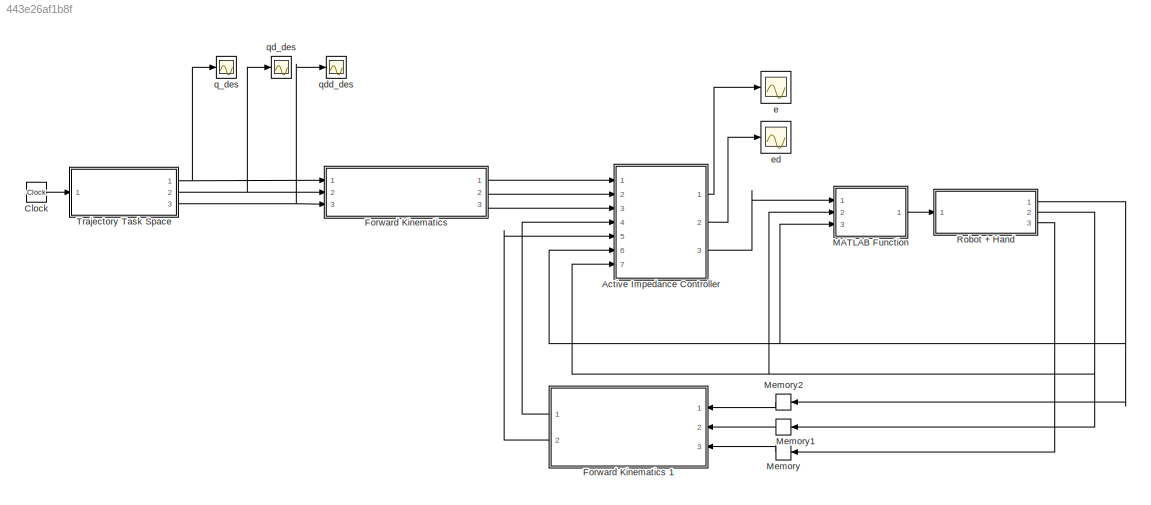
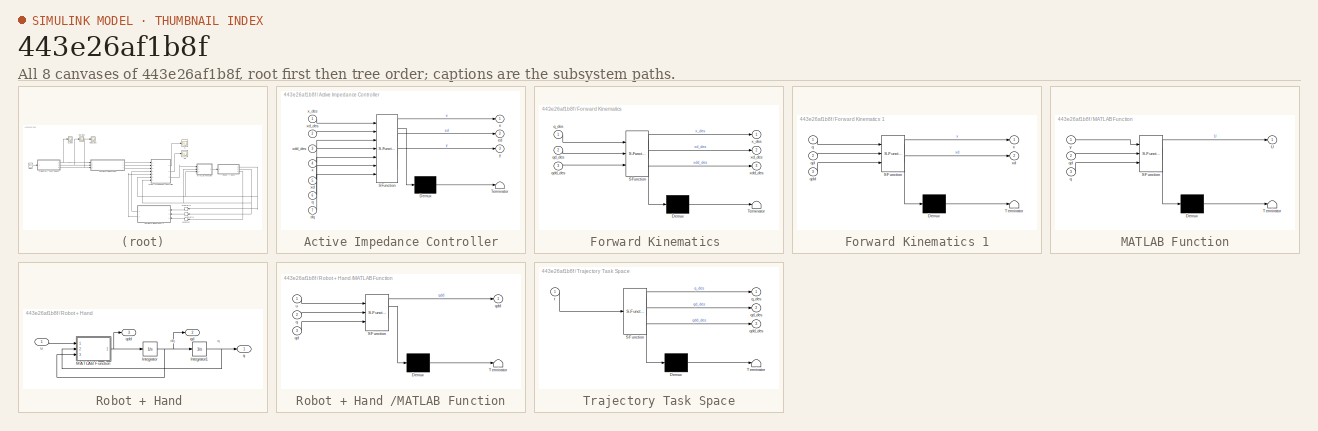
[diagram: thumbnail index - all 8 canvases of the model, root first then tree order]
MODEL slx_443e26af1b8f
KIND model
CONFIG AbsTol = auto
CONFIG EnableMultiTasking = on
CONFIG FixedStep = Ts
CONFIG MaxStep = auto
CONFIG MinStep = auto
CONFIG RelTol = 1e-3
CONFIG SampleTimeConstraint = Unconstrained
CONFIG Solver = FixedStepAuto
CONFIG SolverName = FixedStepAuto
CONFIG StartTime = 0.0
CONFIG StopTime = 10.0
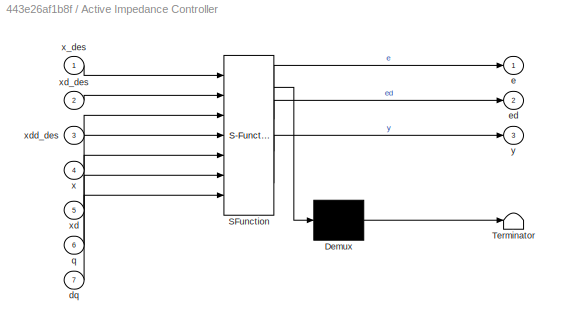
BLOCK [SubSystem] Active Impedance Controller
  ErrorFcn = Stateflow.Translate.translate
  PermitHierarchicalResolution = ExplicitOnly
  Ports = [7, 3]
  RequestExecContextInheritance = off
  SFBlockType = MATLAB Function
  TreatAsAtomicUnit = on
BLOCK [Demux] Active Impedance Controller/ Demux 
  Outputs = 1
  Ports = [1, 1]
BLOCK [S-Function] Active Impedance Controller/ SFunction 
  EnableBusSupport = on
  FunctionName = sf_sfun
  PortCounts = [7 4]
  Ports = [7, 4]
  Tag = Stateflow S-Function ImpedanceControl 1
BLOCK [Terminator] Active Impedance Controller/ Terminator 
BLOCK [Inport] Active Impedance Controller/dq
  IconDisplay = Port number
  Port = 7
BLOCK [Outport] Active Impedance Controller/e
  IconDisplay = Port number
BLOCK [Outport] Active Impedance Controller/ed
  IconDisplay = Port number
  Port = 2
BLOCK [Inport] Active Impedance Controller/q
  IconDisplay = Port number
  Port = 6
BLOCK [Inport] Active Impedance Controller/x
  IconDisplay = Port number
  Port = 4
BLOCK [Inport] Active Impedance Controller/x_des
  IconDisplay = Port number
BLOCK [Inport] Active Impedance Controller/xd
  IconDisplay = Port number
  Port = 5
BLOCK [Inport] Active Impedance Controller/xd_des
  IconDisplay = Port number
  Port = 2
BLOCK [Inport] Active Impedance Controller/xdd_des
  IconDisplay = Port number
  Port = 3
BLOCK [Outport] Active Impedance Controller/y
  IconDisplay = Port number
  Port = 3
BLOCK [Clock] Clock
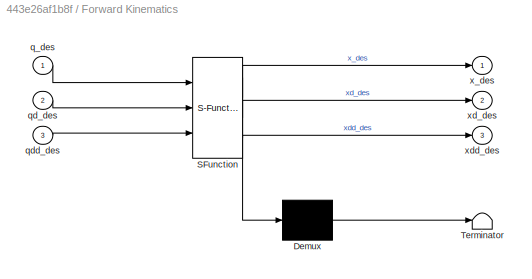
BLOCK [SubSystem] Forward Kinematics 
  ErrorFcn = Stateflow.Translate.translate
  PermitHierarchicalResolution = ExplicitOnly
  Ports = [3, 3]
  RequestExecContextInheritance = off
  SFBlockType = MATLAB Function
  TreatAsAtomicUnit = on
BLOCK [Demux] Forward Kinematics / Demux 
  Outputs = 1
  Ports = [1, 1]
BLOCK [S-Function] Forward Kinematics / SFunction 
  EnableBusSupport = on
  FunctionName = sf_sfun
  PortCounts = [3 4]
  Ports = [3, 4]
  Tag = Stateflow S-Function ImpedanceControl 2
BLOCK [Terminator] Forward Kinematics / Terminator 
BLOCK [Inport] Forward Kinematics /q_des
  IconDisplay = Port number
BLOCK [Inport] Forward Kinematics /qd_des
  IconDisplay = Port number
  Port = 2
BLOCK [Inport] Forward Kinematics /qdd_des
  IconDisplay = Port number
  Port = 3
BLOCK [Outport] Forward Kinematics /x_des
  IconDisplay = Port number
BLOCK [Outport] Forward Kinematics /xd_des
  IconDisplay = Port number
  Port = 2
BLOCK [Outport] Forward Kinematics /xdd_des
  IconDisplay = Port number
  Port = 3
BLOCK [SubSystem] Forward Kinematics 1
  ErrorFcn = Stateflow.Translate.translate
  PermitHierarchicalResolution = ExplicitOnly
  Ports = [3, 2]
  RequestExecContextInheritance = off
  SFBlockType = MATLAB Function
  TreatAsAtomicUnit = on
BLOCK [Demux] Forward Kinematics 1/ Demux 
  Outputs = 1
  Ports = [1, 1]
BLOCK [S-Function] Forward Kinematics 1/ SFunction 
  EnableBusSupport = on
  FunctionName = sf_sfun
  PortCounts = [3 3]
  Ports = [3, 3]
  Tag = Stateflow S-Function ImpedanceControl 6
BLOCK [Terminator] Forward Kinematics 1/ Terminator 
BLOCK [Inport] Forward Kinematics 1/q
  IconDisplay = Port number
BLOCK [Inport] Forward Kinematics 1/qd
  IconDisplay = Port number
  Port = 2
BLOCK [Inport] Forward Kinematics 1/qdd
  IconDisplay = Port number
  Port = 3
BLOCK [Outport] Forward Kinematics 1/x
  IconDisplay = Port number
BLOCK [Outport] Forward Kinematics 1/xd
  IconDisplay = Port number
  Port = 2
BLOCK [SubSystem] MATLAB Function
  ErrorFcn = Stateflow.Translate.translate
  PermitHierarchicalResolution = ExplicitOnly
  Ports = [3, 1]
  RequestExecContextInheritance = off
  SFBlockType = MATLAB Function
  TreatAsAtomicUnit = on
BLOCK [Demux] MATLAB Function/ Demux 
  Outputs = 1
  Ports = [1, 1]
BLOCK [S-Function] MATLAB Function/ SFunction 
  EnableBusSupport = on
  FunctionName = sf_sfun
  PortCounts = [3 2]
  Ports = [3, 2]
  Tag = Stateflow S-Function ImpedanceControl 7
BLOCK [Terminator] MATLAB Function/ Terminator 
BLOCK [Outport] MATLAB Function/U
  IconDisplay = Port number
BLOCK [Inport] MATLAB Function/q
  IconDisplay = Port number
  Port = 3
BLOCK [Inport] MATLAB Function/qd
  IconDisplay = Port number
  Port = 2
BLOCK [Inport] MATLAB Function/y
  IconDisplay = Port number
BLOCK [Memory] Memory
BLOCK [Memory] Memory1
BLOCK [Memory] Memory2
BLOCK [SubSystem] Robot + Hand 
  Ports = [1, 3]
  RequestExecContextInheritance = off
BLOCK [Integrator] Robot + Hand /Integrator
  InitialCondition = [0;0;0]
  Ports = [1, 1]
BLOCK [Integrator] Robot + Hand /Integrator1
  InitialCondition = [0;0;0]
  Ports = [1, 1]
BLOCK [SubSystem] Robot + Hand /MATLAB Function
  ErrorFcn = Stateflow.Translate.translate
  PermitHierarchicalResolution = ExplicitOnly
  Ports = [3, 1]
  RequestExecContextInheritance = off
  SFBlockType = MATLAB Function
  TreatAsAtomicUnit = on
BLOCK [Demux] Robot + Hand /MATLAB Function/ Demux 
  Outputs = 1
  Ports = [1, 1]
BLOCK [S-Function] Robot + Hand /MATLAB Function/ SFunction 
  EnableBusSupport = on
  FunctionName = sf_sfun
  PortCounts = [3 2]
  Ports = [3, 2]
  Tag = Stateflow S-Function ImpedanceControl 3
BLOCK [Terminator] Robot + Hand /MATLAB Function/ Terminator 
BLOCK [Inport] Robot + Hand /MATLAB Function/q
  IconDisplay = Port number
  Port = 2
BLOCK [Inport] Robot + Hand /MATLAB Function/qd
  IconDisplay = Port number
  Port = 3
BLOCK [Outport] Robot + Hand /MATLAB Function/qdd
  IconDisplay = Port number
BLOCK [Inport] Robot + Hand /MATLAB Function/u
  IconDisplay = Port number
BLOCK [Outport] Robot + Hand /q
  IconDisplay = Port number
  PortDimensions = 3
BLOCK [Outport] Robot + Hand /qd
  IconDisplay = Port number
  Port = 2
  PortDimensions = 3
BLOCK [Outport] Robot + Hand /qdd
  IconDisplay = Port number
  Port = 3
  PortDimensions = 3
BLOCK [Inport] Robot + Hand /u 
  IconDisplay = Port number
  PortDimensions = 3
BLOCK [SubSystem] Trajectory Task Space
  ErrorFcn = Stateflow.Translate.translate
  PermitHierarchicalResolution = ExplicitOnly
  Ports = [1, 3]
  RequestExecContextInheritance = off
  SFBlockType = MATLAB Function
  TreatAsAtomicUnit = on
BLOCK [Demux] Trajectory Task Space/ Demux 
  Outputs = 1
  Ports = [1, 1]
BLOCK [S-Function] Trajectory Task Space/ SFunction 
  EnableBusSupport = on
  FunctionName = sf_sfun
  PortCounts = [1 4]
  Ports = [1, 4]
  Tag = Stateflow S-Function ImpedanceControl 4
BLOCK [Terminator] Trajectory Task Space/ Terminator 
BLOCK [Outport] Trajectory Task Space/q_des
  IconDisplay = Port number
BLOCK [Outport] Trajectory Task Space/qd_des
  IconDisplay = Port number
  Port = 2
BLOCK [Outport] Trajectory Task Space/qdd_des
  IconDisplay = Port number
  Port = 3
BLOCK [Inport] Trajectory Task Space/t
  IconDisplay = Port number
BLOCK [Scope] e
  Floating = off
  NumInputPorts = 1
  Ports = [1]
  ShowLegends = off
BLOCK [Scope] ed
  Floating = off
  NumInputPorts = 1
  Ports = [1]
  ShowLegends = off
BLOCK [Scope] q_des
  Floating = off
  NumInputPorts = 1
  Ports = [1]
  ShowLegends = off
BLOCK [Scope] qd_des
  Floating = off
  NumInputPorts = 1
  Ports = [1]
  ShowLegends = off
BLOCK [Scope] qdd_des
  Floating = off
  NumInputPorts = 1
  Ports = [1]
  ShowLegends = off
ANNOTATION Robot + Hand : dq
ANNOTATION Robot + Hand : q
LINE Active Impedance Controller:1 -> e:1
LINE Active Impedance Controller:2 -> ed:1
LINE Active Impedance Controller:3 -> MATLAB Function:1
LINE Clock:1 -> Trajectory Task Space:1
LINE Forward Kinematics 1:1 -> Active Impedance Controller:4
LINE Forward Kinematics 1:2 -> Active Impedance Controller:5
LINE Forward Kinematics :1 -> Active Impedance Controller:1
LINE Forward Kinematics :2 -> Active Impedance Controller:2
LINE Forward Kinematics :3 -> Active Impedance Controller:3
LINE MATLAB Function:1 -> Robot + Hand :1
LINE Memory1:1 -> Forward Kinematics 1:2
LINE Memory2:1 -> Forward Kinematics 1:1
LINE Memory:1 -> Forward Kinematics 1:3
NET Robot + Hand /Integrator1:1 -> Robot + Hand /MATLAB Function:2, Robot + Hand /q:1
NET Robot + Hand /Integrator:1 -> Robot + Hand /Integrator1:1, Robot + Hand /MATLAB Function:3, Robot + Hand /qd:1
NET Robot + Hand /MATLAB Function:1 -> Robot + Hand /Integrator:1, Robot + Hand /qdd:1
LINE Robot + Hand /u :1 -> Robot + Hand /MATLAB Function:1
NET Robot + Hand :1 -> Active Impedance Controller:6, MATLAB Function:3, Memory2:1
NET Robot + Hand :2 -> Active Impedance Controller:7, MATLAB Function:2, Memory1:1
LINE Robot + Hand :3 -> Memory:1
NET Trajectory Task Space:1 -> Forward Kinematics :1, q_des:1
NET Trajectory Task Space:2 -> Forward Kinematics :2, qd_des:1
NET Trajectory Task Space:3 -> Forward Kinematics :3, qdd_des:1
note: NET lines group one-source signal fan-out (src -> all destinations, sorted); 1:1 wires keep LINE
CHART Active Impedance Controller states=1 transitions=1
  STATE_LABEL 'eML_blk_kernel()'
  STATE_LABEL 'SCRIPT:\nfunction [e,ed,y] = ImpController(x_des,xd_des,xdd_des,x,xd,q,dq)\n    %% Recalling Model Kinematics\n    q1=q(1);q2=q(2);q3=q(3);\n    dq1=dq(1);dq2=dq(2);dq3=dq(3);\n   [~,J,Jd] = KinematicModel(q1,q2,q3,dq1,dq2,dq3);\n    %% Impedance Behaviour Parameters\n    Md =100*eye(6);       % Interia matrix, must be Positive definite\n    Kd =500*eye(6);       % Damping matrix\n    Kp =2500*eye(6);     ...<+198ch>'
CHART Forward Kinematics
  states=1 transitions=1
  STATE_LABEL 'eML_blk_kernel()'
  STATE_LABEL 'SCRIPT:\nfunction [x_des,xd_des,xdd_des]  = ForwardKinematics(q_des,qd_des,qdd_des)\nq1=q_des(1);q2=q_des(2);q3=q_des(3);\ndq1=qd_des(1);dq2=qd_des(2);dq3=qd_des(3);\n[Te,j,jd] = KinematicModel(q1,q2,q3,dq1,dq2,dq3);\np=Te(1:3,4);\nR7=Te(1:3,1:3);\nf=atan2(R7(2,1),R7(1,1));\nt=atan2(-R7(3,1),sqrt(R7(3,2)^2+R7(3,3)^2));\ns=atan2(R7(3,2),R7(3,3)); \nRPY=[s;t;f]; %R7PY R7epR7esentation\n% f=atan2(R7(2,1),R7(1,1...<+174ch>'
CHART Robot + Hand /MATLAB Function states=1 transitions=1
  STATE_LABEL 'eML_blk_kernel()'
  STATE_LABEL 'SCRIPT:\nfunction qdd = DirDyn(u,q,qd)\n%% Recalling Model Dynamics \n[M,V,G] = DynamicModel(q,qd);\nB=[0.0252; 0.0019; 0.0029]; %Nms/rad\nFk=[0.1891; 0.0541; 0.1339];\nJmeta=35.9*0.9*0.9*[1;1;1]*0.001*0.0001;\nM=M+[Jmeta(1) 0 0;0 Jmeta(2) 0;0 0 Jmeta(3)]; \nhe=[0;0;0;0;0;0];\n%% Recalling Model Dynamics \nq1=q(1);q2=q(2);q3=q(3);\ndq1=qd(1);dq2=qd(2);dq3=qd(3);\n[~,J,~] = KinematicModel(q1,q2,q3,dq1,dq2,dq3)...<+61ch>'
CHART Trajectory Task Space states=1 transitions=1
  STATE_LABEL 'eML_blk_kernel()'
  STATE_LABEL 'SCRIPT:\nfunction [q_des,qd_des,qdd_des]       = TRJ(t)\n   %% trapezoidal velocity profile \n   qf=[30;10;10];\n   qf=qf*(pi/180);\n   qi=[0;0;0];\n   L=norm(qf-qi);\n   qd_max=0.1; %v_max enterd by user\n   T=100*qd_max;\n   qdd_max=qd_max^2/(T*qd_max-L);\n   sig=0;\n   sigd=0;\n   sigdd=0;\n\n   Ts=qd_max/qdd_max;\n   if t<=Ts\n   sig=qdd_max*t^2/2;\n   sigd=qdd_max*t;\n   sigdd=qdd_max;\n   elseif t>Ts && t<=(T-...<+328ch>'
CHART Forward Kinematics
1 states=1 transitions=1
  STATE_LABEL 'eML_blk_kernel()'
  STATE_LABEL 'SCRIPT:\nfunction [x,xd]  = ForwardKinematics(q,qd,qdd)\nq1=q(1);q2=q(2);q3=q(3);\ndq1=qd(1);dq2=qd(2);dq3=qd(3);\n[Te,j,jd] = KinematicModel(q1,q2,q3,dq1,dq2,dq3);\np=Te(1:3,4);\nR7=Te(1:3,1:3);\nf=atan2(R7(2,1),R7(1,1));\nt=atan2(-R7(3,1),sqrt(R7(3,2)^2+R7(3,3)^2));\ns=atan2(R7(3,2),R7(3,3)); \nRPY=[s;t;f]; %R7PY R7epR7esentation\n% f=atan2(R7(2,1),R7(1,1));\n% t=atan2(-R7(3,1),sqrt(R7(3,2)^2+R7(3,3)^2));\n%...<+77ch>'
CHART MATLAB Function states=1 transitions=1
  STATE_LABEL 'eML_blk_kernel()'
  STATE_LABEL 'SCRIPT:\nfunction U = Controller(y,qd,q)   \n    %% Recalling Model Dynamics \n    [M,V,G] = DynamicModel(q,qd);\n    B=[0.0252; 0.0019; 0.0029]; %Nms/rad\n    Fk=[0.1891; 0.0541; 0.1339]; %Nm\n    Jmeta=35.9*0.9*0.9*[1;1;1]*0.001*0.0001;\n    M=M+[Jmeta(1) 0 0;0 Jmeta(2) 0;0 0 Jmeta(3)]; \n    %% Controller Command\n     U = M*y + V + G + B.*qd + Fk.*sign(qd);\nend\n\n'
